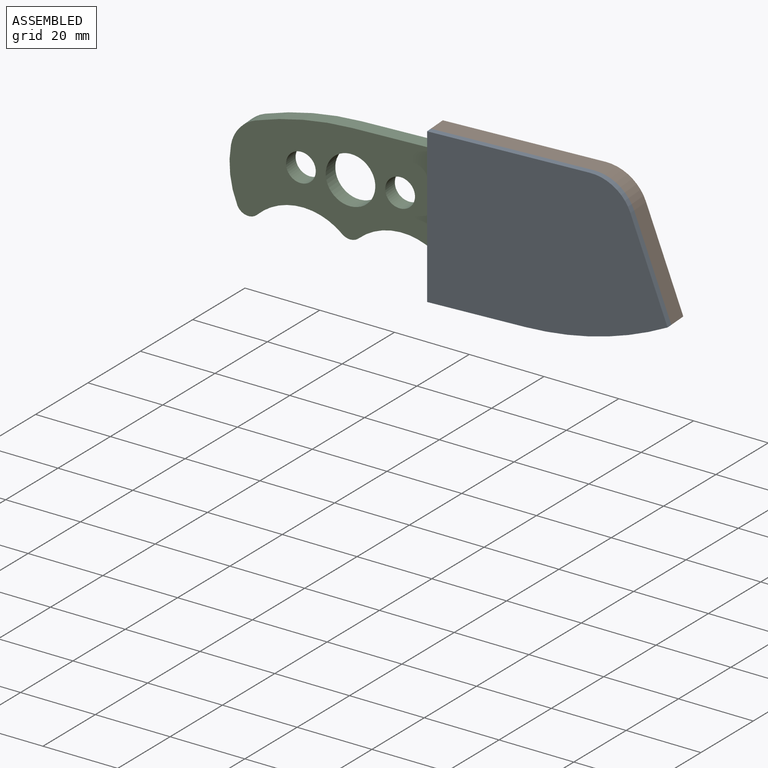
[diagram: assembled view]
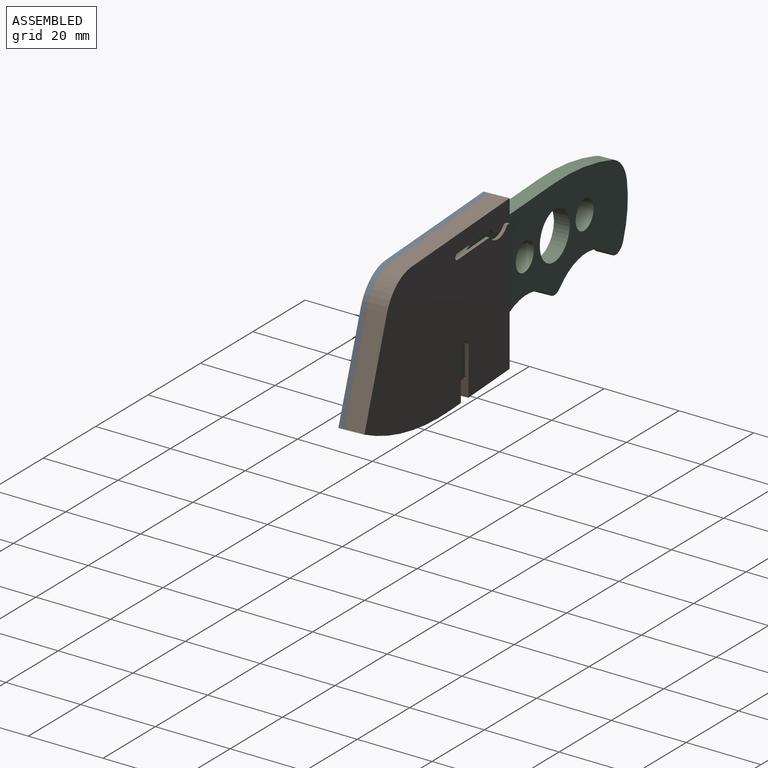
[diagram: assembled view, second angle]
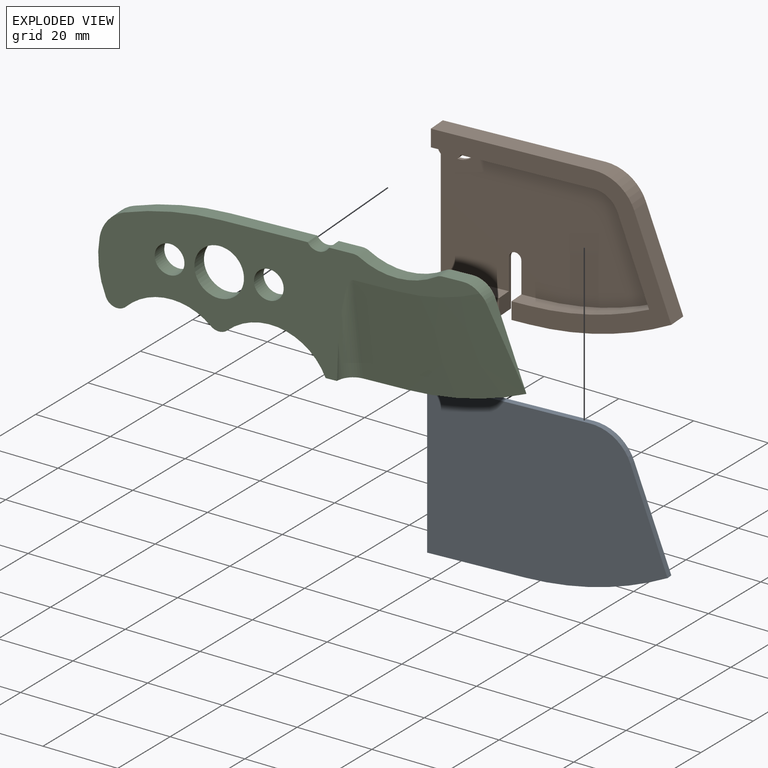
[diagram: exploded view]
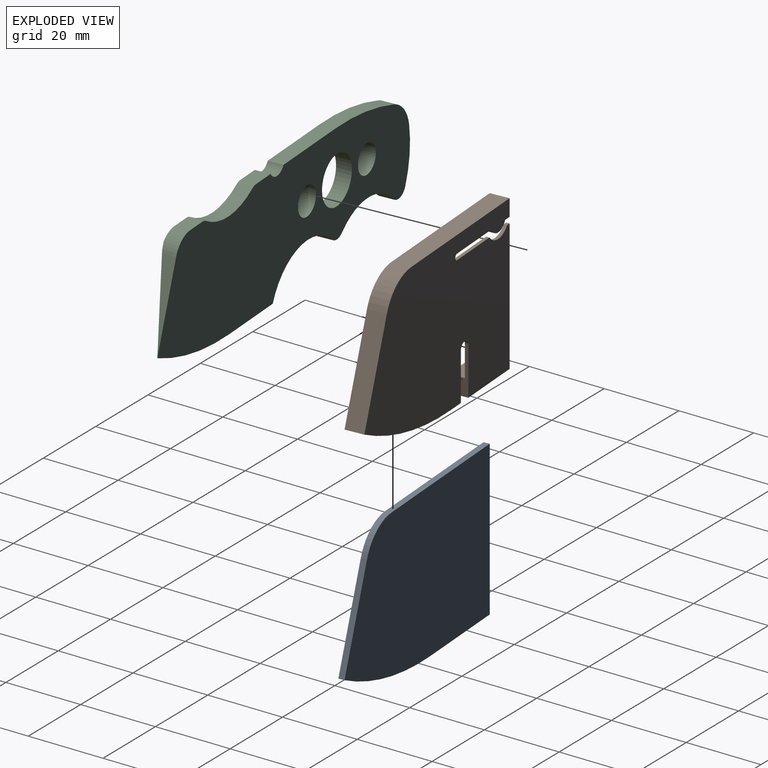
[diagram: exploded view, second angle]
ASSEMBLY  parts=3 mates=8
PART A: 8 faces, bbox 61.6x1.6x41.3 mm
  f0: plane 25.39x9.52mm, normal (0.94,0,0.35), area 43.1mm2, adj f1,f5,f6,f7
  f1: cylinder r=11.11mm len=10.41mm, axis (0,1,0), area 21.4mm2, adj f0,f2,f6,f7
  f2: plane 41.64x1.59mm, normal (0,0,1), area 66.1mm2, adj f1,f3,f6,f7
  f3: plane 41.28x1.59mm, normal (-1,0,0), area 65.5mm2, adj f2,f4,f6,f7
  f4: plane 25.11x1.59mm, normal (0,0,-1), area 39.9mm2, adj f3,f5,f6,f7
  f5: cylinder r=80.96mm len=36.46mm, axis (0,1,0), area 60mm2, adj f0,f4,f6,f7
  f6: plane 61.56x41.28mm, normal (0,-1,0), area 2228mm2, adj f0,f1,f2,f3,f4,f5
  f7: plane 61.56x41.28mm, normal (0,1,0), area 2228mm2, adj f0,f1,f2,f3,f4,f5
PART B: 27 faces, bbox 61.6x5.1x41.3 mm
  f0: plane 5.08x4.47mm, normal (0,0,-1), area 22.7mm2, adj f1,f12,f13,f26
  f1: plane 61.56x41.28mm, normal (0,-1,0), area 533.5mm2, adj f0,f2,f3,f5,f8,f9,f10,f12
  f2: plane 4.47x4.19mm, normal (0,0,1), area 18.7mm2, adj f1,f4,f16,f26
  f3: plane 5.08x4.51mm, normal (-1,0,0), area 22.9mm2, adj f1,f5,f10,f13
  f4: plane 55.89x32.26mm, normal (0,-1,0), area 1533.1mm2, adj f2,f6,f14,f15,f16,f17,f18,f20
  f5: plane 5.08x1.88mm, normal (0,0,-1), area 9.6mm2, adj f1,f3,f13,f19
  f6: plane 35.18x5.08mm, normal (-1,0,0), area 50.2mm2, adj f4,f7,f11,f13,f15,f20
  f7: plane 17.46x4.51mm, normal (0,-1,0), area 78.7mm2, adj f6,f11,f15,f25
  f8: plane 25.39x9.52mm, normal (0.94,0,0.35), area 137.8mm2, adj f1,f9,f12,f13
  f9: cylinder r=11.11mm len=10.41mm, axis (0,1,0), area 68.4mm2, adj f1,f8,f10,f13
  f10: plane 41.64x5.08mm, normal (0,0,1), area 211.5mm2, adj f1,f3,f9,f13
  f11: plane 17.46x5.08mm, normal (0,0,-1), area 88.7mm2, adj f6,f7,f13,f25
  f12: cylinder r=80.96mm len=36.46mm, axis (0,1,0), area 192.1mm2, adj f0,f1,f8,f13
  f13: plane 61.56x41.28mm, normal (0,1,0), area 2145.4mm2, adj f0,f3,f5,f6,f8,f9,f10,f11
  f14: plane 33.99x5.08mm, normal (0,0,-1), area 155.4mm2, adj f1,f4,f13,f18,f19,f23
  f15: plane 17.46x4.19mm, normal (0,0,1), area 73.2mm2, adj f4,f6,f7,f25
  f16: cylinder r=76.45mm len=30.78mm, axis (0,-1,0), area 132.7mm2, adj f1,f2,f4,f17
  f17: plane 21.51x8.06mm, normal (-0.94,0,-0.35), area 96.3mm2, adj f1,f4,f16,f18
  f18: cylinder r=6.6mm len=6.18mm, axis (0,-1,0), area 33.5mm2, adj f1,f4,f14,f17
  f19: cylinder r=3.17mm len=5.76mm, axis (0,-1,0), area 36.7mm2, adj f1,f5,f13,f14
  f20: plane 1x0.89mm, normal (0,0,1), area 0.9mm2, adj f4,f6,f13,f21
  f21: cylinder r=4.76mm len=7.52mm, axis (0,-1,0), area 7.7mm2, adj f4,f13,f20,f22
  f22: plane 13.7x0.89mm, normal (0,0,1), area 12.2mm2, adj f4,f13,f21,f23
  f23: cylinder r=0.79mm len=1.59mm, axis (0,-1,0), area 2.2mm2, adj f4,f13,f14,f22
  f24: cylinder r=1.59mm len=3.18mm, axis (0,-1,0), area 4.4mm2, adj f4,f13,f25,f26
  f25: plane 12.7x5.08mm, normal (1,0,0), area 30.2mm2, adj f4,f7,f11,f13,f15,f24
  f26: plane 12.7x5.08mm, normal (-1,0,0), area 30.2mm2, adj f0,f1,f2,f4,f13,f24
PART C: 25 faces, bbox 109x8.3x32.7 mm
  f0: plane 22.23x4.06mm, normal (0,0,1), area 90.3mm2, adj f2,f10,f19,f23
  f1: cylinder r=25.4mm len=14.26mm, axis (0,1,0), area 59.1mm2, adj f2,f10,f14,f24
  f2: plane 97.69x31.75mm, normal (0,1,0), area 1387.6mm2, adj f0,f1,f3,f4,f5,f7,f8,f9
  f3: plane 6.12x4.06mm, normal (0,0,1), area 24.9mm2, adj f2,f10,f19,f21
  f4: plane 5.11x4.06mm, normal (0,0,1), area 20.8mm2, adj f2,f9,f10,f22
  f5: plane 7.38x4.34mm, normal (0,0,-1), area 15.7mm2, adj f2,f7,f10,f18
  f6: plane 21.53x8.23mm, normal (-0.94,0,0.35), area 41.2mm2, adj f9,f10,f12
  f7: cylinder r=15.88mm len=25.13mm, axis (0,1,0), area 121.9mm2, adj f2,f5,f10,f13
  f8: cylinder r=15.88mm len=21.71mm, axis (0,1,0), area 97.2mm2, adj f2,f10,f13,f14
  f9: cylinder r=6.35mm len=5.95mm, axis (0,1,0), area 30.7mm2, adj f2,f4,f6,f10,f12
  f10: plane 107.17x31.75mm, normal (0,-1,0), area 2439.1mm2, adj f0,f1,f3,f4,f5,f6,f7,f8
  f11: plane 25.4x11.39mm, normal (0,0.99,-0.16), area 293.1mm2, adj f2,f10,f12,f18
  f12: cone r=76.2mm half-angle=80.9deg, axis (0,-1,0), area 690.1mm2, adj f2,f6,f9,f10,f11
  f13: cylinder r=3.17mm len=4.23mm, axis (0,1,0), area 18.8mm2, adj f2,f7,f8,f10
  f14: cylinder r=3.17mm len=5.15mm, axis (0,-1,0), area 25.1mm2, adj f1,f2,f8,f10
  f15: cylinder r=6.35mm len=12.7mm, axis (0,1,0), area 162.1mm2, adj f2,f10
  f16: cylinder r=3.81mm len=7.62mm, axis (0,1,0), area 97.3mm2, adj f2,f10
  f17: cylinder r=3.81mm len=7.62mm, axis (0,1,0), area 97.3mm2, adj f2,f10
  f18: cylinder r=4.19mm len=26.03mm, axis (0,-0.16,-0.99), area 104.6mm2, adj f2,f5,f11
  f19: cylinder r=3.17mm len=5.5mm, axis (0,1,0), area 27mm2, adj f0,f2,f3,f10
  f20: cylinder r=19.05mm len=19.62mm, axis (0,1,0), area 83.8mm2, adj f2,f10,f21,f22
  f21: cylinder r=3.17mm len=4.06mm, axis (0,1,0), area 7mm2, adj f2,f3,f10,f20
  f22: cylinder r=3.17mm len=4.06mm, axis (0,1,0), area 7mm2, adj f2,f4,f10,f20
  f23: cylinder r=76.2mm len=24.72mm, axis (0,1,0), area 102.3mm2, adj f0,f2,f10,f24
  f24: cylinder r=9.53mm len=7.36mm, axis (0,1,0), area 41.3mm2, adj f1,f2,f10,f23
PLACE A rot(axis=(0,0,1),3.9deg) t=(-15.21,-8.98,-11.86)mm
PLACE B rot(axis=(0,0,1),3.9deg) t=(-21.78,-4.33,-22.83)mm
PLACE C rot(axis=(0,0,-1),176.1deg) t=(-41.74,-10.65,-13.31)mm
MATE planar B.f11 <-> A.f4  axis (0,0,-1) through (-37.95,-7.98,-33.94)mm
MATE cylindrical C.f19 <-> B.f19  axis (0.07,-1,0) through (-41.74,-10.65,4.16)mm
MATE planar A.f7 <-> B.f1  axis (-0.07,1,0) through (-19.25,-9.25,-13.44)mm
MATE planar A.f3 <-> B.f6  axis (-1,-0.07,0) through (-46.43,-11.89,-13.31)mm
MATE parallel A.f4 <-> B.f0  axis (0,0,-1) through (-33.91,-11.04,-33.94)mm
MATE parallel A.f3 <-> B.f6  axis (-1,-0.07,0) through (-46.43,-11.89,-13.31)mm
MATE planar B.f9 <-> C.f10  axis (0.07,-1,0) through (-5.23,-4.1,-3.78)mm
MATE parallel A.f4 <-> B.f11  axis (0,0,-1) through (-33.91,-11.04,-33.94)mm
